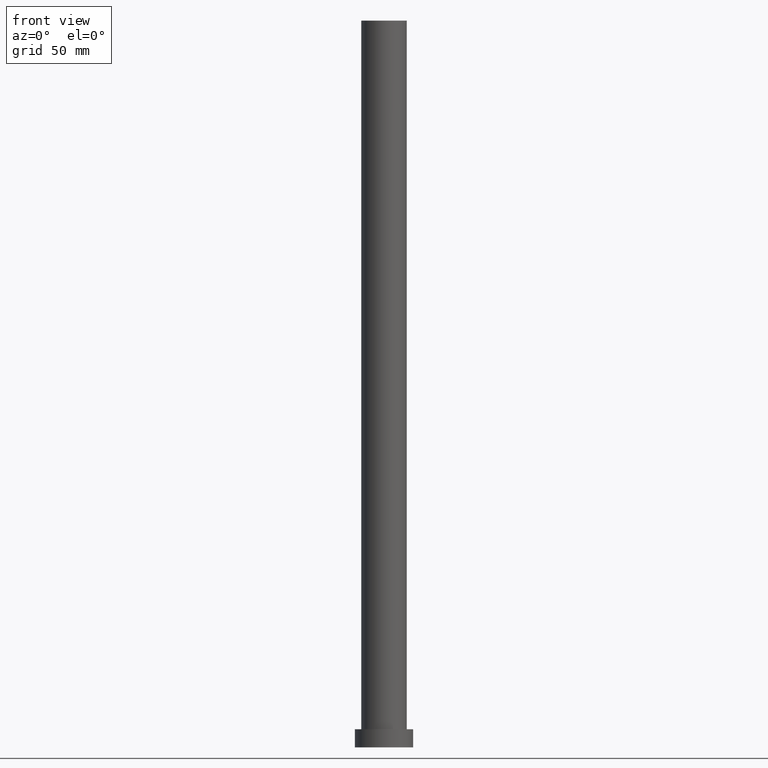
[diagram: clean part render]
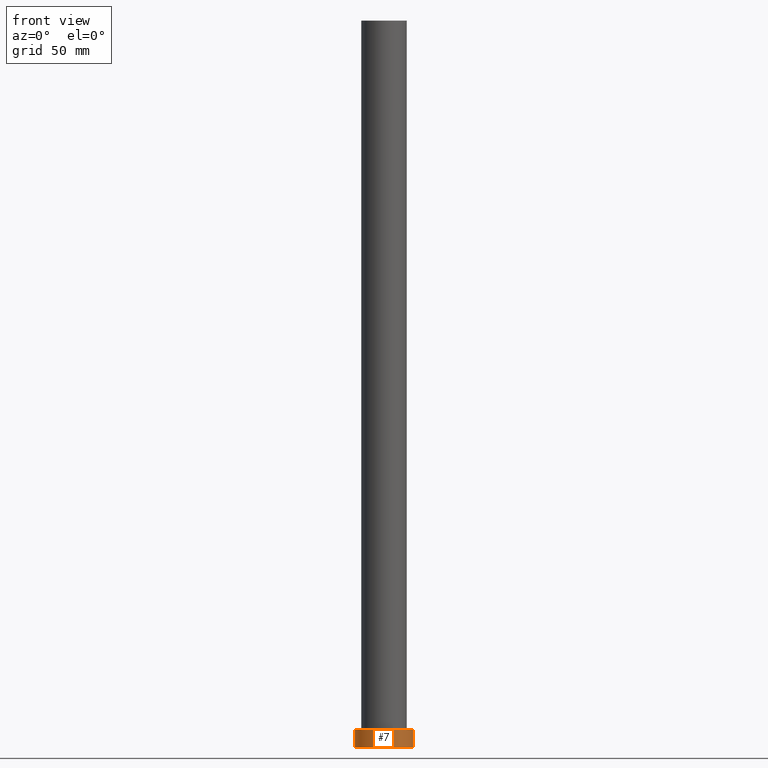
[diagram: same view with one face highlighted and labeled with its STEP entity id]
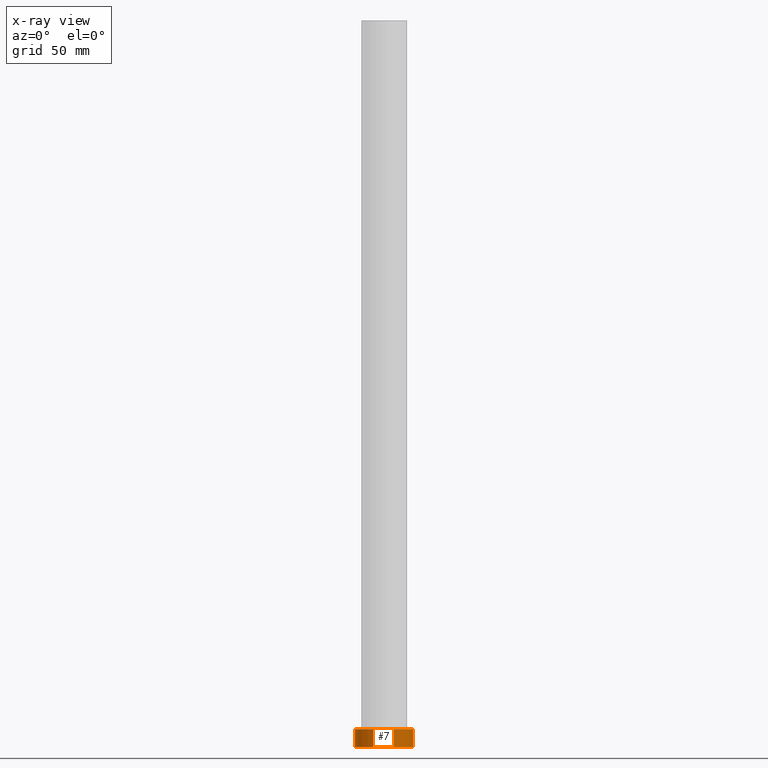
[diagram: x-ray of the same camera — body ghosted, the highlighted face saturated]
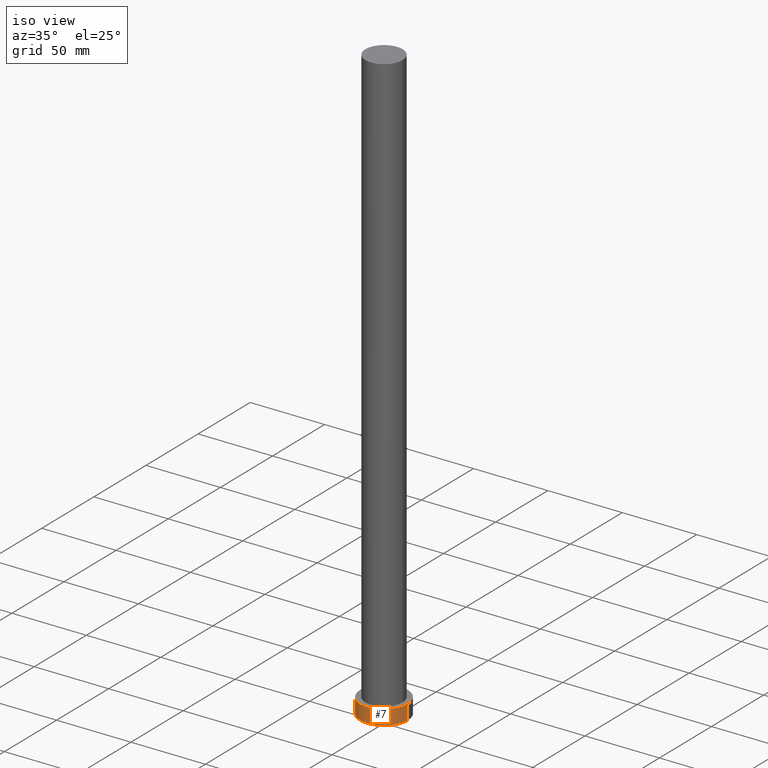
[diagram: same view with one face highlighted and labeled with its STEP entity id]
A machine part, front view. The second image highlights one B-rep face of the part: STEP entity #7.
The next image is the same camera in x-ray: the body ghosted, the highlighted face saturated — about 0% of this face is hidden behind the body in this view.
A second angle (iso view) of the same face is appended — the face is thin or edge-on in the first view.
In plain terms, the highlighted cylindrical surface (edge-blend (fillet) strip) has radius 16 mm, axis along (-0, -0, -1).
Its self-contained STEP definition (entity closure, byte-faithful):
#1 = DIRECTION ( 'NONE',  ( 0.000000000000000000, 0.000000000000000000, 1.000000000000000000 ) ) ;
#3 = DIRECTION ( 'NONE',  ( -0.000000000000000000, -0.000000000000000000, -1.000000000000000000 ) ) ;
#7 = ADVANCED_FACE ( 'NONE', ( #228 ), #51, .T. ) ;
#24 = CIRCLE ( 'NONE', #242, 16.00000000000000000 ) ;
#34 = ORIENTED_EDGE ( 'NONE', *, *, #155, .T. ) ;
#37 = DIRECTION ( 'NONE',  ( -0.000000000000000000, -0.000000000000000000, -1.000000000000000000 ) ) ;
#40 = CARTESIAN_POINT ( 'NONE',  ( 16.00000000000000000, 1.959434878635765131E-15, 10.00000000000000000 ) ) ;
#46 = EDGE_LOOP ( 'NONE', ( #182, #125, #34, #88 ) ) ;
#49 = VERTEX_POINT ( 'NONE', #166 ) ;
#51 = CYLINDRICAL_SURFACE ( 'NONE', #216, 16.00000000000000000 ) ;
#54 = DIRECTION ( 'NONE',  ( -1.000000000000000000, 0.000000000000000000, 0.000000000000000000 ) ) ;
#55 = DIRECTION ( 'NONE',  ( 1.000000000000000000, 0.000000000000000000, 0.000000000000000000 ) ) ;
#81 = EDGE_CURVE ( 'NONE', #158, #49, #235, .T. ) ;
#84 = DIRECTION ( 'NONE',  ( 1.000000000000000000, 0.000000000000000000, 0.000000000000000000 ) ) ;
#88 = ORIENTED_EDGE ( 'NONE', *, *, #198, .T. ) ;
#95 = CARTESIAN_POINT ( 'NONE',  ( -16.00000000000000000, 0.000000000000000000, 0.000000000000000000 ) ) ;
#108 = EDGE_CURVE ( 'NONE', #49, #222, #212, .T. ) ;
#123 = VERTEX_POINT ( 'NONE', #95 ) ;
#124 = CARTESIAN_POINT ( 'NONE',  ( -16.00000000000000000, 0.000000000000000000, 10.00000000000000000 ) ) ;
#125 = ORIENTED_EDGE ( 'NONE', *, *, #81, .F. ) ;
#146 = DIRECTION ( 'NONE',  ( -0.000000000000000000, -0.000000000000000000, -1.000000000000000000 ) ) ;
#151 = CARTESIAN_POINT ( 'NONE',  ( 0.000000000000000000, 0.000000000000000000, 10.00000000000000000 ) ) ;
#155 = EDGE_CURVE ( 'NONE', #158, #123, #210, .T. ) ;
#158 = VERTEX_POINT ( 'NONE', #124 ) ;
#164 = AXIS2_PLACEMENT_3D ( 'NONE', #151, #1, #55 ) ;
#166 = CARTESIAN_POINT ( 'NONE',  ( 16.00000000000000000, 1.959434878635765131E-15, 10.00000000000000000 ) ) ;
#172 = VECTOR ( 'NONE', #37, 1000.000000000000000 ) ;
#173 = CARTESIAN_POINT ( 'NONE',  ( 16.00000000000000000, 1.959434878635765131E-15, 0.000000000000000000 ) ) ;
#182 = ORIENTED_EDGE ( 'NONE', *, *, #108, .F. ) ;
#198 = EDGE_CURVE ( 'NONE', #123, #222, #24, .T. ) ;
#210 = LINE ( 'NONE', #232, #172 ) ;
#212 = LINE ( 'NONE', #40, #231 ) ;
#216 = AXIS2_PLACEMENT_3D ( 'NONE', #233, #3, #54 ) ;
#222 = VERTEX_POINT ( 'NONE', #173 ) ;
#228 = FACE_OUTER_BOUND ( 'NONE', #46, .T. ) ;
#231 = VECTOR ( 'NONE', #146, 1000.000000000000000 ) ;
#232 = CARTESIAN_POINT ( 'NONE',  ( -16.00000000000000000, 0.000000000000000000, 10.00000000000000000 ) ) ;
#233 = CARTESIAN_POINT ( 'NONE',  ( 0.000000000000000000, 0.000000000000000000, 10.00000000000000000 ) ) ;
#235 = CIRCLE ( 'NONE', #164, 16.00000000000000000 ) ;
#242 = AXIS2_PLACEMENT_3D ( 'NONE', #244, #247, #84 ) ;
#244 = CARTESIAN_POINT ( 'NONE',  ( 0.000000000000000000, 0.000000000000000000, 0.000000000000000000 ) ) ;
#247 = DIRECTION ( 'NONE',  ( 0.000000000000000000, 0.000000000000000000, 1.000000000000000000 ) ) ;